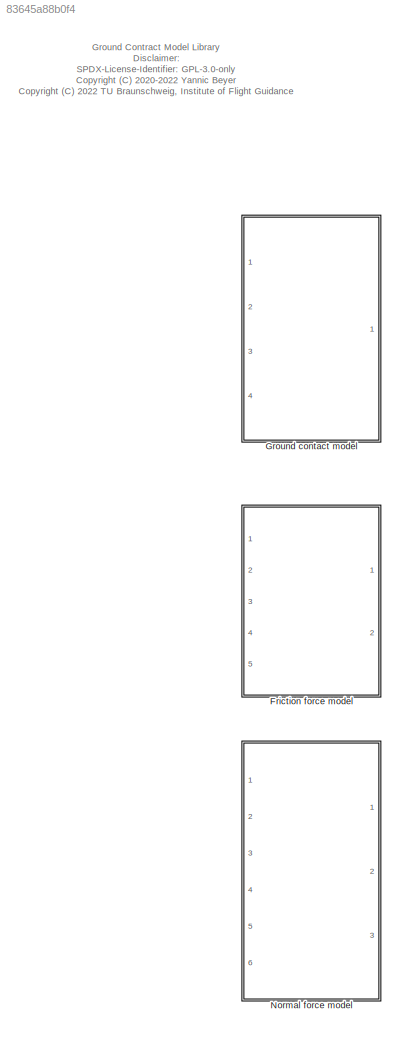
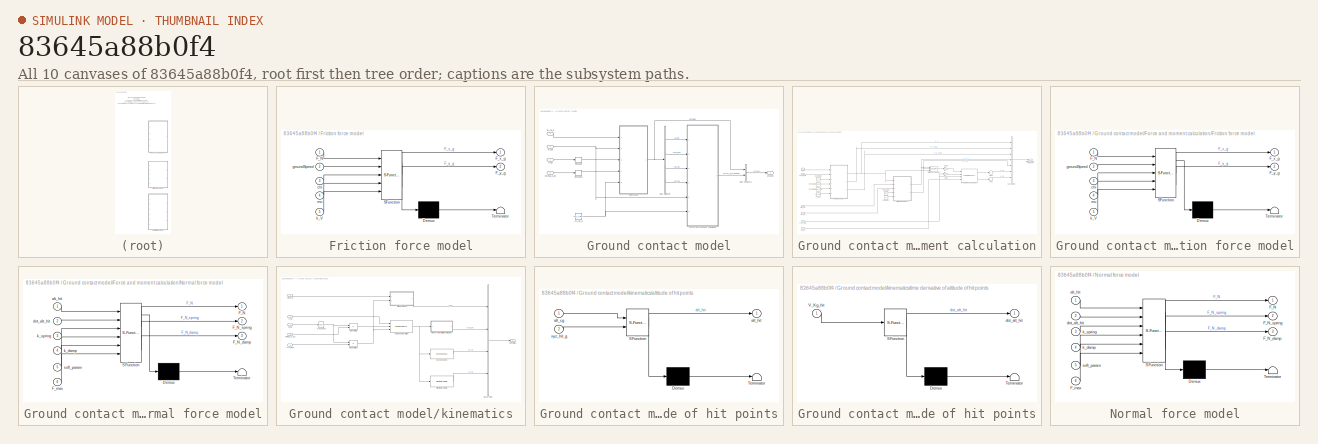
[diagram: thumbnail index - all 10 canvases of the model, root first then tree order]
MODEL slx_83645a88b0f4
KIND library
CONFIG AbsTol = auto
CONFIG EnableMultiTasking = off
CONFIG FixedStep = auto
CONFIG MaxStep = auto
CONFIG MinStep = auto
CONFIG RelTol = 1e-3
CONFIG SampleTimeConstraint = Unconstrained
CONFIG Solver = VariableStepAuto
CONFIG SolverName = VariableStepAuto
CONFIG StartTime = 0.0
CONFIG StopTime = 10.0
BLOCK [SubSystem] Friction force model
  ErrorFcn = Stateflow.Translate.translate
  PermitHierarchicalResolution = ExplicitOnly
  Ports = [5, 2]
  RequestExecContextInheritance = off
  SFBlockType = MATLAB Function
  TreatAsAtomicUnit = on
BLOCK [Demux] Friction force model/ Demux 
  Outputs = 1
  Ports = [1, 1]
BLOCK [S-Function] Friction force model/ SFunction 
  EnableBusSupport = off
  FunctionName = sf_sfun
  PortCounts = [5 3]
  Ports = [5, 3]
  SFcnIsStateOwnerBlock = off
  SFunctionDeploymentMode = off
  Tag = Stateflow S-Function ground_lib 2
BLOCK [Terminator] Friction force model/ Terminator 
BLOCK [Inport] Friction force model/F_N
  IconDisplay = Port number
BLOCK [Outport] Friction force model/F_x_g
  IconDisplay = Port number
BLOCK [Outport] Friction force model/F_y_g
  IconDisplay = Port number
  Port = 2
BLOCK [Inport] Friction force model/chi
  IconDisplay = Port number
  Port = 3
BLOCK [Inport] Friction force model/groundSpeed
  IconDisplay = Port number
  Port = 2
BLOCK [Inport] Friction force model/k_V
  IconDisplay = Port number
  Port = 5
BLOCK [Inport] Friction force model/mu
  IconDisplay = Port number
  Port = 4
BLOCK [SubSystem] Ground contact model
  Ports = [4, 1]
  RequestExecContextInheritance = off
BLOCK [BusCreator] Ground contact model/Bus Creator1
  DisplayOption = bar
  InheritFromInputs = on
  Inputs = 2
  Ports = [2, 1]
BLOCK [BusSelector] Ground contact model/Bus Selector
  OutputAsBus = off
  OutputSignals = alt_hit,dot_alt_hit,GS_hit,chi_hit
  Ports = [1, 4]
BLOCK [SubSystem] Ground contact model/Force and moment calculation
  Ports = [6, 1]
  RequestExecContextInheritance = off
BLOCK [Sum] Ground contact model/Force and moment calculation/Add1
  CollapseDim = 2
  CollapseMode = Specified dimension
  InputSameDT = off
  Inputs = +
  OutDataTypeStr = Inherit: Inherit via internal rule
  Ports = [1, 1]
  SaturateOnIntegerOverflow = off
BLOCK [Sum] Ground contact model/Force and moment calculation/Add2
  CollapseDim = 2
  CollapseMode = Specified dimension
  InputSameDT = off
  Inputs = +
  OutDataTypeStr = Inherit: Inherit via internal rule
  Ports = [1, 1]
  SaturateOnIntegerOverflow = off
BLOCK [BusCreator] Ground contact model/Force and moment calculation/Bus Creator
  DisplayOption = bar
  InheritFromInputs = on
  Inputs = 7
  Ports = [7, 1]
BLOCK [Constant] Ground contact model/Force and moment calculation/Constant
  Value = k_V
BLOCK [Constant] Ground contact model/Force and moment calculation/Constant1
  Value = mu
BLOCK [Constant] Ground contact model/Force and moment calculation/Constant2
  Value = k_h
BLOCK [Constant] Ground contact model/Force and moment calculation/Constant3
  Value = k_dot_h
BLOCK [Constant] Ground contact model/Force and moment calculation/Constant4
  Value = ground_softness_param
BLOCK [Constant] Ground contact model/Force and moment calculation/F_max
  Value = m*a_max
BLOCK [Reference] Ground contact model/Force and moment calculation/Force to force and moment  REF=axes_transformation_lib/Force to force and moment  (lib defined in slx_69e2413c78c0)
  Ports = [4, 2]
  SourceBlock = axes_transformation_lib/Force to force and moment
  SourceProductName = LADAC
  SourceType = SubSystem
BLOCK [SubSystem] Ground contact model/Force and moment calculation/Friction force model
  ErrorFcn = Stateflow.Translate.translate
  PermitHierarchicalResolution = ExplicitOnly
  Ports = [5, 2]
  RequestExecContextInheritance = off
  SFBlockType = MATLAB Function
  TreatAsAtomicUnit = on
BLOCK [Demux] Ground contact model/Force and moment calculation/Friction force model/ Demux 
  Outputs = 1
  Ports = [1, 1]
BLOCK [S-Function] Ground contact model/Force and moment calculation/Friction force model/ SFunction 
  EnableBusSupport = off
  FunctionName = sf_sfun
  PortCounts = [5 3]
  Ports = [5, 3]
  SFcnIsStateOwnerBlock = off
  SFunctionDeploymentMode = off
  Tag = Stateflow S-Function ground_lib 3
BLOCK [Terminator] Ground contact model/Force and moment calculation/Friction force model/ Terminator 
BLOCK [Inport] Ground contact model/Force and moment calculation/Friction force model/F_N
  IconDisplay = Port number
BLOCK [Outport] Ground contact model/Force and moment calculation/Friction force model/F_x_g
  IconDisplay = Port number
BLOCK [Outport] Ground contact model/Force and moment calculation/Friction force model/F_y_g
  IconDisplay = Port number
  Port = 2
BLOCK [Inport] Ground contact model/Force and moment calculation/Friction force model/chi
  IconDisplay = Port number
  Port = 3
BLOCK [Inport] Ground contact model/Force and moment calculation/Friction force model/groundSpeed
  IconDisplay = Port number
  Port = 2
BLOCK [Inport] Ground contact model/Force and moment calculation/Friction force model/k_V
  IconDisplay = Port number
  Port = 5
BLOCK [Inport] Ground contact model/Force and moment calculation/Friction force model/mu
  IconDisplay = Port number
  Port = 4
BLOCK [Inport] Ground contact model/Force and moment calculation/GS_hit
  IconDisplay = Port number
  Port = 3
BLOCK [Gain] Ground contact model/Force and moment calculation/Gain
  Gain = 0
  OutDataTypeStr = Inherit: Inherit via internal rule
  ParamDataTypeStr = Inherit: Inherit via internal rule
  SaturateOnIntegerOverflow = off
BLOCK [Gain] Ground contact model/Force and moment calculation/Gain3
  Gain = -1
  OutDataTypeStr = Inherit: Inherit via internal rule
  ParamDataTypeStr = Inherit: Inherit via internal rule
  SaturateOnIntegerOverflow = off
BLOCK [Inport] Ground contact model/Force and moment calculation/M_bg
  IconDisplay = Port number
  Port = 5
BLOCK [Concatenate] Ground contact model/Force and moment calculation/Matrix Concatenate
  Mode = Multidimensional array
  NumInputs = 3
  Ports = [3, 1]
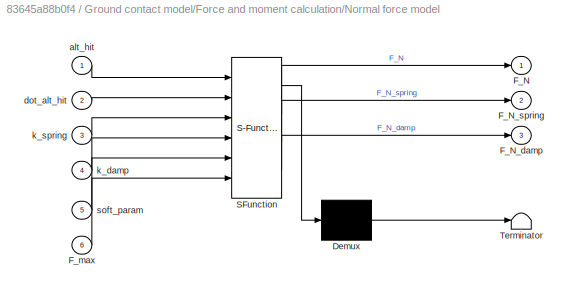
BLOCK [SubSystem] Ground contact model/Force and moment calculation/Normal force model
  ErrorFcn = Stateflow.Translate.translate
  PermitHierarchicalResolution = ExplicitOnly
  Ports = [6, 3]
  RequestExecContextInheritance = off
  SFBlockType = MATLAB Function
  TreatAsAtomicUnit = on
BLOCK [Demux] Ground contact model/Force and moment calculation/Normal force model/ Demux 
  Outputs = 1
  Ports = [1, 1]
BLOCK [S-Function] Ground contact model/Force and moment calculation/Normal force model/ SFunction 
  EnableBusSupport = off
  FunctionName = sf_sfun
  PortCounts = [6 4]
  Ports = [6, 4]
  SFcnIsStateOwnerBlock = off
  SFunctionDeploymentMode = off
  Tag = Stateflow S-Function ground_lib 4
BLOCK [Terminator] Ground contact model/Force and moment calculation/Normal force model/ Terminator 
BLOCK [Outport] Ground contact model/Force and moment calculation/Normal force model/F_N
  IconDisplay = Port number
BLOCK [Outport] Ground contact model/Force and moment calculation/Normal force model/F_N_damp
  IconDisplay = Port number
  Port = 3
BLOCK [Outport] Ground contact model/Force and moment calculation/Normal force model/F_N_spring
  IconDisplay = Port number
  Port = 2
BLOCK [Inport] Ground contact model/Force and moment calculation/Normal force model/F_max
  IconDisplay = Port number
  Port = 6
BLOCK [Inport] Ground contact model/Force and moment calculation/Normal force model/alt_hit
  IconDisplay = Port number
BLOCK [Inport] Ground contact model/Force and moment calculation/Normal force model/dot_alt_hit
  IconDisplay = Port number
  Port = 2
BLOCK [Inport] Ground contact model/Force and moment calculation/Normal force model/k_damp
  IconDisplay = Port number
  Port = 4
BLOCK [Inport] Ground contact model/Force and moment calculation/Normal force model/k_spring
  IconDisplay = Port number
  Port = 3
BLOCK [Inport] Ground contact model/Force and moment calculation/Normal force model/soft_param
  IconDisplay = Port number
  Port = 5
BLOCK [Inport] Ground contact model/Force and moment calculation/alt_hit
  IconDisplay = Port number
BLOCK [Inport] Ground contact model/Force and moment calculation/chi_hit
  IconDisplay = Port number
  Port = 4
BLOCK [Inport] Ground contact model/Force and moment calculation/dot_alt_hit
  IconDisplay = Port number
  Port = 2
BLOCK [Outport] Ground contact model/Force and moment calculation/forces_and_moments
  IconDisplay = Port number
BLOCK [Inport] Ground contact model/Force and moment calculation/xyz_hit_b
  IconDisplay = Port number
  Port = 6
BLOCK [Inport] Ground contact model/M_bg
  IconDisplay = Port number
  Port = 2
BLOCK [Reshape] Ground contact model/Reshape
  OutputDimensionality = Column vector (2-D)
  Ports = [1, 1]
BLOCK [Reshape] Ground contact model/Reshape1
  OutputDimensionality = Column vector (2-D)
  Ports = [1, 1]
BLOCK [Inport] Ground contact model/V_Kg
  IconDisplay = Port number
BLOCK [Inport] Ground contact model/alt_cg_g
  IconDisplay = Port number
  Port = 4
BLOCK [Outport] Ground contact model/ground
  IconDisplay = Port number
BLOCK [SubSystem] Ground contact model/kinematics
  Ports = [5, 1]
  RequestExecContextInheritance = off
BLOCK [BusCreator] Ground contact model/kinematics/Bus Creator
  DisplayOption = bar
  InheritFromInputs = on
  Inputs = 4
  Ports = [4, 1]
BLOCK [Reference] Ground contact model/kinematics/Flight Path Azimuth  REF=flight_parameters_lib/Flight Path Azimuth  (lib defined in slx_01e6108afe6f)
  Ports = [1, 1]
  SourceBlock = flight_parameters_lib/Flight Path Azimuth
  SourceProductName = LADAC
  SourceType = SubSystem
BLOCK [Reference] Ground contact model/kinematics/Ground speed  REF=flight_parameters_lib/Ground speed  (lib defined in slx_01e6108afe6f)
  Ports = [1, 1]
  SourceBlock = flight_parameters_lib/Ground speed
  SourceProductName = LADAC
  SourceType = SubSystem
BLOCK [Inport] Ground contact model/kinematics/M_bg
  IconDisplay = Port number
  Port = 2
BLOCK [Product] Ground contact model/kinematics/Matrix Multiply
  InputSameDT = off
  Multiplication = Matrix(*)
  OutDataTypeStr = Inherit: Inherit via internal rule
  Ports = [2, 1]
  RndMeth = Floor
  SaturateOnIntegerOverflow = off
BLOCK [Product] Ground contact model/kinematics/Matrix Multiply1
  InputSameDT = off
  Multiplication = Matrix(*)
  OutDataTypeStr = Inherit: Inherit via internal rule
  Ports = [2, 1]
  RndMeth = Floor
  SaturateOnIntegerOverflow = off
BLOCK [Math] Ground contact model/kinematics/Transpose
  Operator = transpose
  Ports = [1, 1]
BLOCK [Inport] Ground contact model/kinematics/V_Kg
  IconDisplay = Port number
  Port = 3
BLOCK [Reference] Ground contact model/kinematics/Velocity due to rotation  REF=axes_transformation_lib/Velocity due to rotation  (lib defined in slx_69e2413c78c0)
  Ports = [3, 1]
  SourceBlock = axes_transformation_lib/Velocity due to rotation
  SourceProductName = LADAC
  SourceType = SubSystem
BLOCK [Inport] Ground contact model/kinematics/alt_cg_g
  IconDisplay = Port number
BLOCK [SubSystem] Ground contact model/kinematics/altitude of hit points
  ErrorFcn = Stateflow.Translate.translate
  PermitHierarchicalResolution = ExplicitOnly
  Ports = [2, 1]
  RequestExecContextInheritance = off
  SFBlockType = MATLAB Function
  TreatAsAtomicUnit = on
BLOCK [Demux] Ground contact model/kinematics/altitude of hit points/ Demux 
  Outputs = 1
  Ports = [1, 1]
BLOCK [S-Function] Ground contact model/kinematics/altitude of hit points/ SFunction 
  EnableBusSupport = off
  FunctionName = sf_sfun
  PortCounts = [2 2]
  Ports = [2, 2]
  SFcnIsStateOwnerBlock = off
  SFunctionDeploymentMode = off
  Tag = Stateflow S-Function ground_lib 5
BLOCK [Terminator] Ground contact model/kinematics/altitude of hit points/ Terminator 
BLOCK [Inport] Ground contact model/kinematics/altitude of hit points/alt_cg
  IconDisplay = Port number
BLOCK [Outport] Ground contact model/kinematics/altitude of hit points/alt_hit
  IconDisplay = Port number
BLOCK [Inport] Ground contact model/kinematics/altitude of hit points/xyz_hit_g
  IconDisplay = Port number
  Port = 2
BLOCK [Outport] Ground contact model/kinematics/kinematics
  IconDisplay = Port number
BLOCK [Inport] Ground contact model/kinematics/omega_b_gb
  IconDisplay = Port number
  Port = 4
BLOCK [SubSystem] Ground contact model/kinematics/time derivative of altitude of hit points
  ErrorFcn = Stateflow.Translate.translate
  PermitHierarchicalResolution = ExplicitOnly
  Ports = [1, 1]
  RequestExecContextInheritance = off
  SFBlockType = MATLAB Function
  TreatAsAtomicUnit = on
BLOCK [Demux] Ground contact model/kinematics/time derivative of altitude of hit points/ Demux 
  Outputs = 1
  Ports = [1, 1]
BLOCK [S-Function] Ground contact model/kinematics/time derivative of altitude of hit points/ SFunction 
  EnableBusSupport = off
  FunctionName = sf_sfun
  PortCounts = [1 2]
  Ports = [1, 2]
  SFcnIsStateOwnerBlock = off
  SFunctionDeploymentMode = off
  Tag = Stateflow S-Function ground_lib 13
BLOCK [Terminator] Ground contact model/kinematics/time derivative of altitude of hit points/ Terminator 
BLOCK [Inport] Ground contact model/kinematics/time derivative of altitude of hit points/V_Kg_hit
  IconDisplay = Port number
BLOCK [Outport] Ground contact model/kinematics/time derivative of altitude of hit points/dot_alt_hit
  IconDisplay = Port number
BLOCK [Inport] Ground contact model/kinematics/xyz_hit_b
  IconDisplay = Port number
  Port = 5
BLOCK [Inport] Ground contact model/omega_b_gb
  IconDisplay = Port number
  Port = 3
BLOCK [Constant] Ground contact model/xyz_hit_b
  Value = xyz_c_hit - repmat(xyz_c_cg,1,length(xyz_c_hit(1,:)))
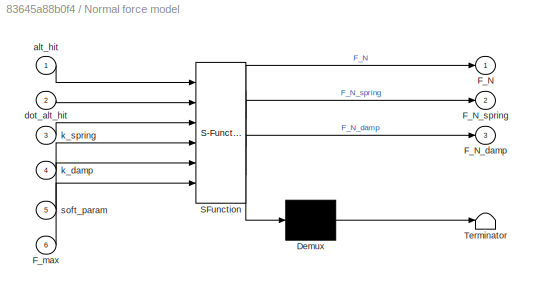
BLOCK [SubSystem] Normal force model
  ErrorFcn = Stateflow.Translate.translate
  PermitHierarchicalResolution = ExplicitOnly
  Ports = [6, 3]
  RequestExecContextInheritance = off
  SFBlockType = MATLAB Function
  TreatAsAtomicUnit = on
BLOCK [Demux] Normal force model/ Demux 
  Outputs = 1
  Ports = [1, 1]
BLOCK [S-Function] Normal force model/ SFunction 
  EnableBusSupport = off
  FunctionName = sf_sfun
  PortCounts = [6 4]
  Ports = [6, 4]
  SFcnIsStateOwnerBlock = off
  SFunctionDeploymentMode = off
  Tag = Stateflow S-Function ground_lib 1
BLOCK [Terminator] Normal force model/ Terminator 
BLOCK [Outport] Normal force model/F_N
  IconDisplay = Port number
BLOCK [Outport] Normal force model/F_N_damp
  IconDisplay = Port number
  Port = 3
BLOCK [Outport] Normal force model/F_N_spring
  IconDisplay = Port number
  Port = 2
BLOCK [Inport] Normal force model/F_max
  IconDisplay = Port number
  Port = 6
BLOCK [Inport] Normal force model/alt_hit
  IconDisplay = Port number
BLOCK [Inport] Normal force model/dot_alt_hit
  IconDisplay = Port number
  Port = 2
BLOCK [Inport] Normal force model/k_damp
  IconDisplay = Port number
  Port = 4
BLOCK [Inport] Normal force model/k_spring
  IconDisplay = Port number
  Port = 3
BLOCK [Inport] Normal force model/soft_param
  IconDisplay = Port number
  Port = 5
ANNOTATION (root): Ground Contract Model Library Disclaimer: SPDX-License-Identifier: GPL-3.0-only <copyright redacted>
LINE Ground contact model/Bus Creator1:1 -> Ground contact model/ground:1
LINE Ground contact model/Bus Selector:1 -> Ground contact model/Force and moment calculation:1
LINE Ground contact model/Bus Selector:2 -> Ground contact model/Force and moment calculation:2
LINE Ground contact model/Bus Selector:3 -> Ground contact model/Force and moment calculation:3
LINE Ground contact model/Bus Selector:4 -> Ground contact model/Force and moment calculation:4
LINE Ground contact model/Force and moment calculation/Add1:1 -> Ground contact model/Force and moment calculation/Bus Creator:7
LINE Ground contact model/Force and moment calculation/Add2:1 -> Ground contact model/Force and moment calculation/Bus Creator:6
LINE Ground contact model/Force and moment calculation/Bus Creator:1 -> Ground contact model/Force and moment calculation/forces_and_moments:1
LINE Ground contact model/Force and moment calculation/Constant1:1 -> Ground contact model/Force and moment calculation/Friction force model:4
LINE Ground contact model/Force and moment calculation/Constant2:1 -> Ground contact model/Force and moment calculation/Normal force model:3
LINE Ground contact model/Force and moment calculation/Constant3:1 -> Ground contact model/Force and moment calculation/Normal force model:4
LINE Ground contact model/Force and moment calculation/Constant4:1 -> Ground contact model/Force and moment calculation/Normal force model:5
LINE Ground contact model/Force and moment calculation/Constant:1 -> Ground contact model/Force and moment calculation/Friction force model:5
LINE Ground contact model/Force and moment calculation/F_max:1 -> Ground contact model/Force and moment calculation/Normal force model:6
LINE Ground contact model/Force and moment calculation/Force to force and moment:1 -> Ground contact model/Force and moment calculation/Add2:1
LINE Ground contact model/Force and moment calculation/Force to force and moment:2 -> Ground contact model/Force and moment calculation/Add1:1
NET Ground contact model/Force and moment calculation/Friction force model:1 -> Ground contact model/Force and moment calculation/Bus Creator:4, Ground contact model/Force and moment calculation/Matrix Concatenate:1
NET Ground contact model/Force and moment calculation/Friction force model:2 -> Ground contact model/Force and moment calculation/Bus Creator:5, Ground contact model/Force and moment calculation/Matrix Concatenate:2
LINE Ground contact model/Force and moment calculation/GS_hit:1 -> Ground contact model/Force and moment calculation/Friction force model:2
LINE Ground contact model/Force and moment calculation/Gain3:1 -> Ground contact model/Force and moment calculation/Force to force and moment:1
LINE Ground contact model/Force and moment calculation/Gain:1 -> Ground contact model/Force and moment calculation/Force to force and moment:2
LINE Ground contact model/Force and moment calculation/M_bg:1 -> Ground contact model/Force and moment calculation/Force to force and moment:4
LINE Ground contact model/Force and moment calculation/Matrix Concatenate:1 -> Ground contact model/Force and moment calculation/Gain3:1
NET Ground contact model/Force and moment calculation/Normal force model:1 -> Ground contact model/Force and moment calculation/Bus Creator:1, Ground contact model/Force and moment calculation/Friction force model:1, Ground contact model/Force and moment calculation/Matrix Concatenate:3
LINE Ground contact model/Force and moment calculation/Normal force model:2 -> Ground contact model/Force and moment calculation/Bus Creator:2
LINE Ground contact model/Force and moment calculation/Normal force model:3 -> Ground contact model/Force and moment calculation/Bus Creator:3
LINE Ground contact model/Force and moment calculation/alt_hit:1 -> Ground contact model/Force and moment calculation/Normal force model:1
LINE Ground contact model/Force and moment calculation/chi_hit:1 -> Ground contact model/Force and moment calculation/Friction force model:3
LINE Ground contact model/Force and moment calculation/dot_alt_hit:1 -> Ground contact model/Force and moment calculation/Normal force model:2
NET Ground contact model/Force and moment calculation/xyz_hit_b:1 -> Ground contact model/Force and moment calculation/Force to force and moment:3, Ground contact model/Force and moment calculation/Gain:1
LINE Ground contact model/Force and moment calculation:1 -> Ground contact model/Bus Creator1:2
NET Ground contact model/M_bg:1 -> Ground contact model/Force and moment calculation:5, Ground contact model/kinematics:2
LINE Ground contact model/Reshape1:1 -> Ground contact model/kinematics:4
LINE Ground contact model/Reshape:1 -> Ground contact model/kinematics:3
LINE Ground contact model/V_Kg:1 -> Ground contact model/Reshape:1
LINE Ground contact model/alt_cg_g:1 -> Ground contact model/kinematics:1
LINE Ground contact model/kinematics/Bus Creator:1 -> Ground contact model/kinematics/kinematics:1
LINE Ground contact model/kinematics/Flight Path Azimuth:1 -> Ground contact model/kinematics/Bus Creator:4
LINE Ground contact model/kinematics/Ground speed:1 -> Ground contact model/kinematics/Bus Creator:3
LINE Ground contact model/kinematics/M_bg:1 -> Ground contact model/kinematics/Transpose:1
NET Ground contact model/kinematics/Matrix Multiply1:1 -> Ground contact model/kinematics/Velocity due to rotation:3, Ground contact model/kinematics/altitude of hit points:2
LINE Ground contact model/kinematics/Matrix Multiply:1 -> Ground contact model/kinematics/Velocity due to rotation:2
NET Ground contact model/kinematics/Transpose:1 -> Ground contact model/kinematics/Matrix Multiply1:1, Ground contact model/kinematics/Matrix Multiply:1
LINE Ground contact model/kinematics/V_Kg:1 -> Ground contact model/kinematics/Velocity due to rotation:1
NET Ground contact model/kinematics/Velocity due to rotation:1 -> Ground contact model/kinematics/Flight Path Azimuth:1, Ground contact model/kinematics/Ground speed:1, Ground contact model/kinematics/time derivative of altitude of hit points:1
LINE Ground contact model/kinematics/alt_cg_g:1 -> Ground contact model/kinematics/altitude of hit points:1
LINE Ground contact model/kinematics/altitude of hit points:1 -> Ground contact model/kinematics/Bus Creator:1
LINE Ground contact model/kinematics/omega_b_gb:1 -> Ground contact model/kinematics/Matrix Multiply:2
LINE Ground contact model/kinematics/time derivative of altitude of hit points:1 -> Ground contact model/kinematics/Bus Creator:2
LINE Ground contact model/kinematics/xyz_hit_b:1 -> Ground contact model/kinematics/Matrix Multiply1:2
NET Ground contact model/kinematics:1 -> Ground contact model/Bus Creator1:1, Ground contact model/Bus Selector:1
LINE Ground contact model/omega_b_gb:1 -> Ground contact model/Reshape1:1
NET Ground contact model/xyz_hit_b:1 -> Ground contact model/Force and moment calculation:6, Ground contact model/kinematics:5
note: NET lines group one-source signal fan-out (src -> all destinations, sorted); 1:1 wires keep LINE
CHART Normal force model states=1 transitions=1
  STATE_LABEL 'eML_blk_kernel()'
  STATE_LABEL 'SCRIPT:\nfunction [ F_N, F_N_spring, F_N_damp ] = fcn( alt_hit, ...\n    dot_alt_hit, k_spring, k_damp, soft_param, F_max ) %#codegen\n[ F_N, F_N_spring, F_N_damp ] = groundNormalForce( alt_hit, ...\n    dot_alt_hit, k_spring, k_damp, soft_param, F_max );\nend'
CHART Friction force model states=1 transitions=1
  STATE_LABEL 'eML_blk_kernel()'
  STATE_LABEL 'SCRIPT:\nfunction [ F_x_g, F_y_g ] = fcn( F_N, groundSpeed, chi, ...\n    mu, k_V ) %#codegen\n[ F_x_g, F_y_g ] = frictionModel( F_N, groundSpeed, chi, ...\n    mu, k_V );\nend'
CHART Ground contact model/Force and moment calculation/Friction force model states=1 transitions=1
  STATE_LABEL 'eML_blk_kernel()'
  STATE_LABEL 'SCRIPT:\nfunction [ F_x_g, F_y_g ] = fcn( F_N, groundSpeed, chi, ...\n    mu, k_V ) %#codegen\n[ F_x_g, F_y_g ] = frictionModel( F_N, groundSpeed, chi, ...\n    mu, k_V );\nend'
CHART Ground contact model/Force and moment calculation/Normal force model states=1 transitions=1
  STATE_LABEL 'eML_blk_kernel()'
  STATE_LABEL 'SCRIPT:\nfunction [ F_N, F_N_spring, F_N_damp ] = fcn( alt_hit, ...\n    dot_alt_hit, k_spring, k_damp, soft_param, F_max ) %#codegen\n[ F_N, F_N_spring, F_N_damp ] = groundNormalForce( alt_hit, ...\n    dot_alt_hit, k_spring, k_damp, soft_param, F_max );\nend'
CHART Ground contact model/kinematics/altitude of hit points states=1 transitions=1
  STATE_LABEL 'eML_blk_kernel()'
  STATE_LABEL 'SCRIPT:\nfunction alt_hit = fcn( alt_cg, xyz_hit_g ) %#codegen\n% compute altitude of hit points\nnum_hitpoints = length(xyz_hit_g(1,:));\nalt_hit = [ -xyz_hit_g(3,:) + repmat(alt_cg,1,num_hitpoints) ];\nend\n'
CHART Ground contact model/kinematics/time derivative of altitude of hit points states=1 transitions=1
  STATE_LABEL 'eML_blk_kernel()'
  STATE_LABEL 'SCRIPT:\nfunction dot_alt_hit = fcn( V_Kg_hit ) %#codegen\ndot_alt_hit = - V_Kg_hit(3,:);\nend'
